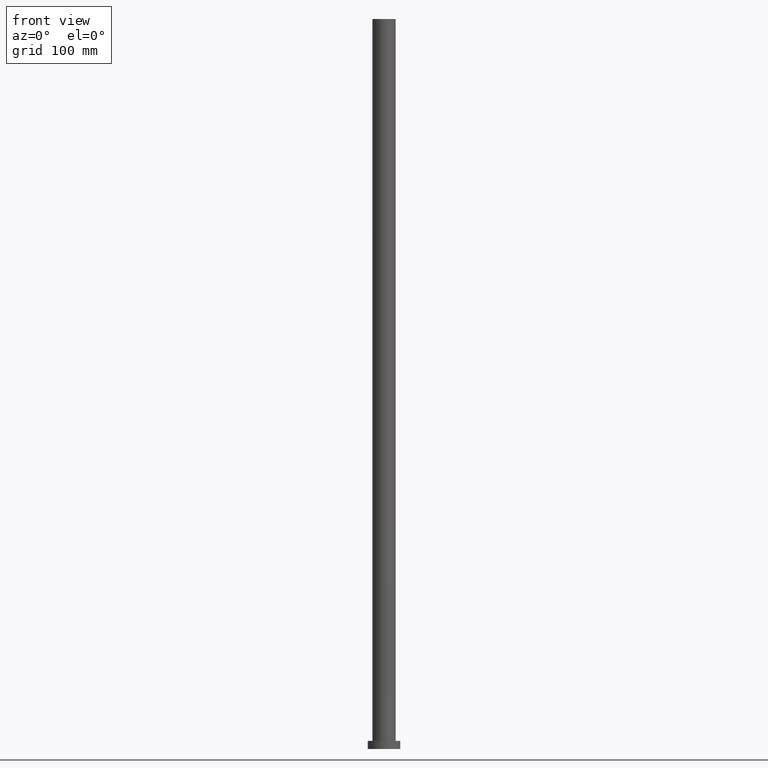
[diagram: clean part render]
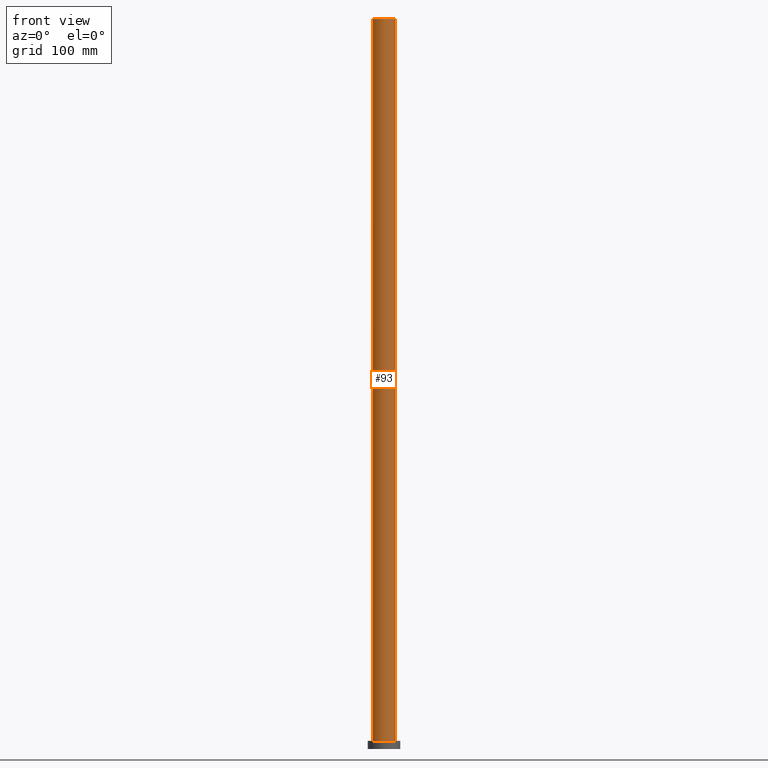
[diagram: same view with one face highlighted and labeled with its STEP entity id]
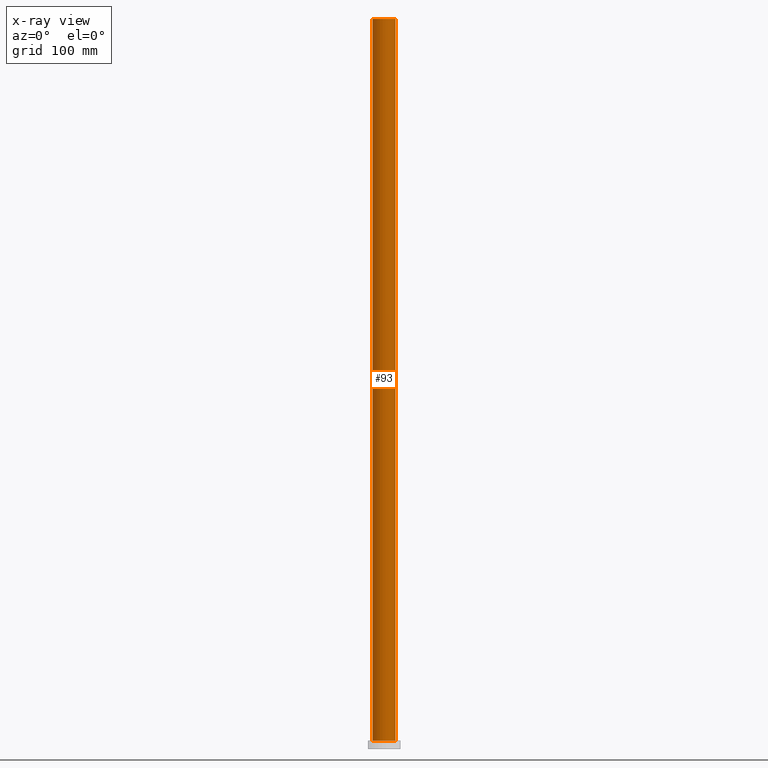
[diagram: x-ray of the same camera — body ghosted, the highlighted face saturated]
A machine part, front view. The second image highlights one B-rep face of the part: STEP entity #93.
The next image is the same camera in x-ray: the body ghosted, the highlighted face saturated — about 0% of this face is hidden behind the body in this view.
In plain terms, the highlighted cylindrical surface (edge-blend (fillet) strip) has radius 10 mm, axis along (-0, -0, -1).
Its self-contained STEP definition (entity closure, byte-faithful):
#9 = DIRECTION ( 'NONE',  ( -0.000000000000000000, -0.000000000000000000, -1.000000000000000000 ) ) ;
#10 = CARTESIAN_POINT ( 'NONE',  ( 0.000000000000000000, 0.000000000000000000, 630.0000000000000000 ) ) ;
#19 = CARTESIAN_POINT ( 'NONE',  ( 0.000000000000000000, 0.000000000000000000, 7.000000000000000000 ) ) ;
#27 = VERTEX_POINT ( 'NONE', #35 ) ;
#28 = ORIENTED_EDGE ( 'NONE', *, *, #62, .F. ) ;
#34 = CIRCLE ( 'NONE', #106, 10.00000000000000000 ) ;
#35 = CARTESIAN_POINT ( 'NONE',  ( 10.00000000000000000, 1.224646799147353256E-15, 7.000000000000000000 ) ) ;
#51 = EDGE_CURVE ( 'NONE', #165, #218, #112, .T. ) ;
#57 = VECTOR ( 'NONE', #9, 1000.000000000000000 ) ;
#62 = EDGE_CURVE ( 'NONE', #165, #235, #34, .T. ) ;
#72 = DIRECTION ( 'NONE',  ( -0.000000000000000000, -0.000000000000000000, -1.000000000000000000 ) ) ;
#73 = FACE_OUTER_BOUND ( 'NONE', #236, .T. ) ;
#75 = CARTESIAN_POINT ( 'NONE',  ( -10.00000000000000000, 0.000000000000000000, 630.0000000000000000 ) ) ;
#93 = ADVANCED_FACE ( 'NONE', ( #73 ), #240, .T. ) ;
#95 = DIRECTION ( 'NONE',  ( 1.000000000000000000, 0.000000000000000000, 0.000000000000000000 ) ) ;
#97 = DIRECTION ( 'NONE',  ( 0.000000000000000000, 0.000000000000000000, 1.000000000000000000 ) ) ;
#98 = EDGE_CURVE ( 'NONE', #235, #27, #229, .T. ) ;
#106 = AXIS2_PLACEMENT_3D ( 'NONE', #10, #136, #95 ) ;
#110 = CARTESIAN_POINT ( 'NONE',  ( 0.000000000000000000, 0.000000000000000000, 630.0000000000000000 ) ) ;
#112 = LINE ( 'NONE', #228, #57 ) ;
#114 = CARTESIAN_POINT ( 'NONE',  ( 10.00000000000000000, 1.224646799147353256E-15, 630.0000000000000000 ) ) ;
#115 = DIRECTION ( 'NONE',  ( 1.000000000000000000, 0.000000000000000000, 0.000000000000000000 ) ) ;
#123 = AXIS2_PLACEMENT_3D ( 'NONE', #110, #188, #227 ) ;
#124 = ORIENTED_EDGE ( 'NONE', *, *, #98, .F. ) ;
#134 = CIRCLE ( 'NONE', #201, 10.00000000000000000 ) ;
#135 = ORIENTED_EDGE ( 'NONE', *, *, #244, .T. ) ;
#136 = DIRECTION ( 'NONE',  ( 0.000000000000000000, 0.000000000000000000, 1.000000000000000000 ) ) ;
#159 = CARTESIAN_POINT ( 'NONE',  ( 10.00000000000000000, 1.224646799147353256E-15, 630.0000000000000000 ) ) ;
#165 = VERTEX_POINT ( 'NONE', #75 ) ;
#185 = ORIENTED_EDGE ( 'NONE', *, *, #51, .T. ) ;
#188 = DIRECTION ( 'NONE',  ( -0.000000000000000000, -0.000000000000000000, -1.000000000000000000 ) ) ;
#201 = AXIS2_PLACEMENT_3D ( 'NONE', #19, #97, #115 ) ;
#218 = VERTEX_POINT ( 'NONE', #231 ) ;
#227 = DIRECTION ( 'NONE',  ( -1.000000000000000000, 0.000000000000000000, 0.000000000000000000 ) ) ;
#228 = CARTESIAN_POINT ( 'NONE',  ( -10.00000000000000000, 0.000000000000000000, 630.0000000000000000 ) ) ;
#229 = LINE ( 'NONE', #114, #230 ) ;
#230 = VECTOR ( 'NONE', #72, 1000.000000000000000 ) ;
#231 = CARTESIAN_POINT ( 'NONE',  ( -10.00000000000000000, 0.000000000000000000, 7.000000000000000000 ) ) ;
#235 = VERTEX_POINT ( 'NONE', #159 ) ;
#236 = EDGE_LOOP ( 'NONE', ( #124, #28, #185, #135 ) ) ;
#240 = CYLINDRICAL_SURFACE ( 'NONE', #123, 10.00000000000000000 ) ;
#244 = EDGE_CURVE ( 'NONE', #218, #27, #134, .T. ) ;